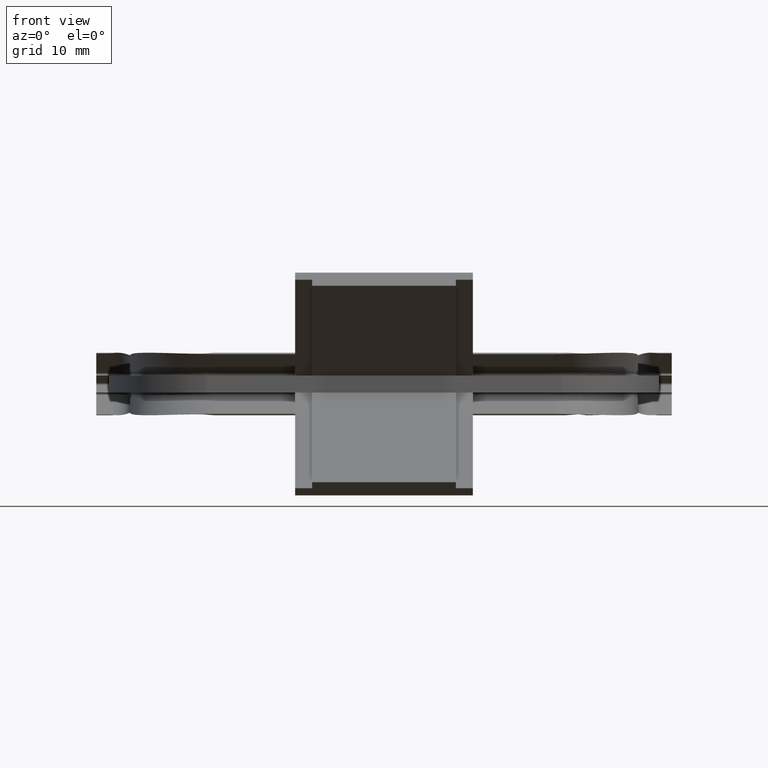
[diagram: clean part render]
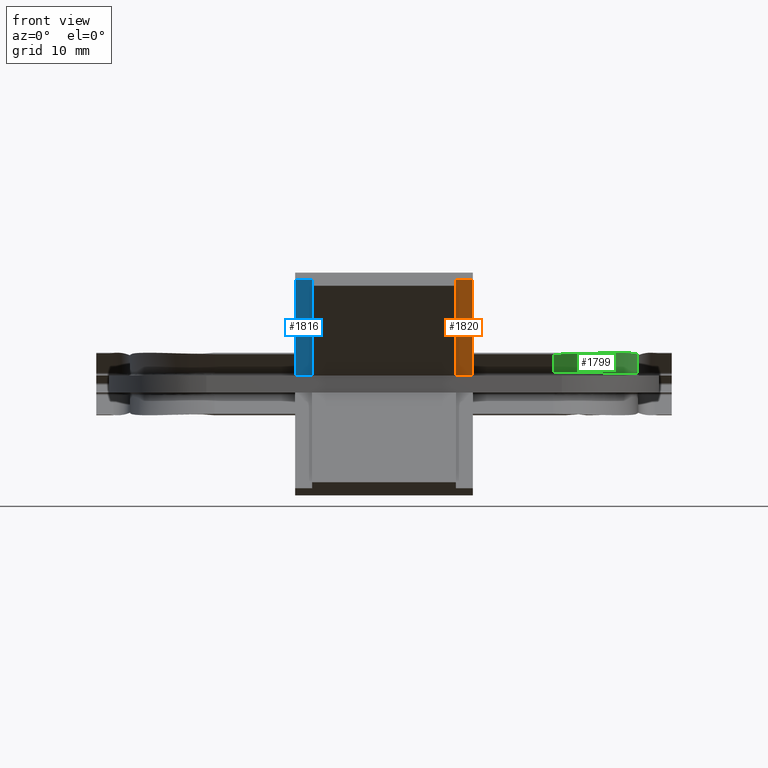
[diagram: same view with three faces highlighted in distinct colors, each labeled with its STEP entity id]
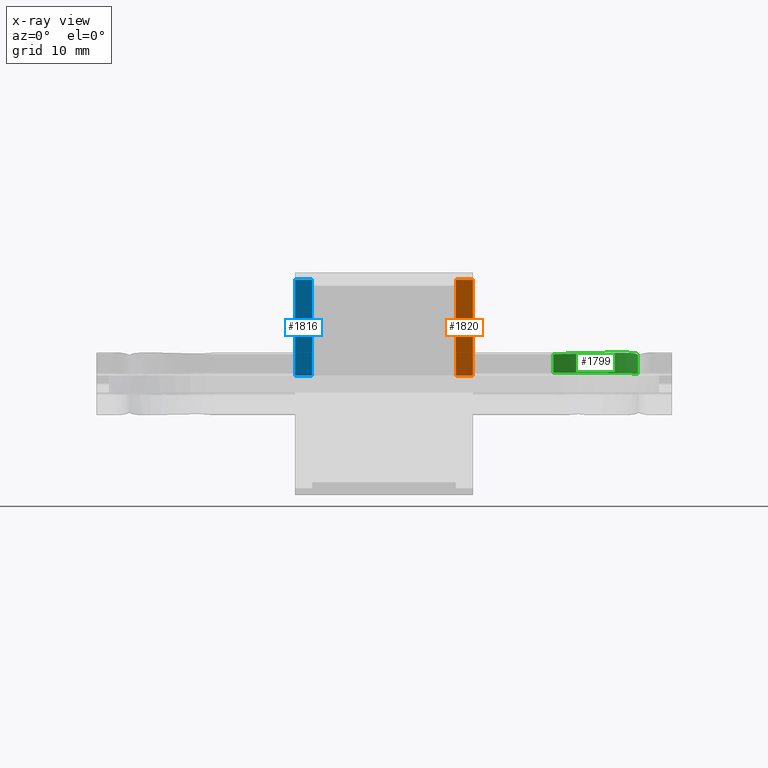
[diagram: x-ray of the same camera — body ghosted, the three highlighted faces saturated]
A machine part, front view with three faces highlighted in distinct colors.
The next image is the same camera in x-ray (body ghosted, the three faces saturated) — at least one of them is partly hidden behind the body in this view.
Their STEP definitions:

[orange] entity #1820 — the highlighted planar face has unit normal (-0, -0.7071, -0.7071).
#125=PLANE('',#2005);
#227=FACE_OUTER_BOUND('',#331,.T.);
#331=EDGE_LOOP('',(#1620,#1621,#1622,#1623));
#398=LINE('',#2662,#554);
#480=LINE('',#3987,#636);
#482=LINE('',#3991,#638);
#483=LINE('',#3992,#639);
#554=VECTOR('',#2152,10.);
#636=VECTOR('',#2448,10.);
#638=VECTOR('',#2452,10.);
#639=VECTOR('',#2453,10.);
#787=VERTEX_POINT('',#2659);
#788=VERTEX_POINT('',#2661);
#876=VERTEX_POINT('',#3986);
#877=VERTEX_POINT('',#3990);
#965=EDGE_CURVE('',#787,#788,#398,.T.);
#1132=EDGE_CURVE('',#876,#788,#480,.T.);
#1134=EDGE_CURVE('',#877,#787,#482,.T.);
#1135=EDGE_CURVE('',#876,#877,#483,.T.);
#1620=ORIENTED_EDGE('',*,*,#1134,.F.);
#1621=ORIENTED_EDGE('',*,*,#1135,.F.);
#1622=ORIENTED_EDGE('',*,*,#1132,.T.);
#1623=ORIENTED_EDGE('',*,*,#965,.F.);
#1820=ADVANCED_FACE('',(#227),#125,.T.);
#2005=AXIS2_PLACEMENT_3D('',#3989,#2450,#2451);
#2152=DIRECTION('',(-1.,6.12303176911189E-17,0.));
#2448=DIRECTION('',(-5.0756085797697E-17,0.707106781186548,-0.707106781186548));
#2450=DIRECTION('center_axis',(-4.32963728535968E-17,-0.707106781186548,
-0.707106781186548));
#2451=DIRECTION('ref_axis',(-1.,0.,6.12303176911189E-17));
#2452=DIRECTION('',(-5.0756085797697E-17,0.707106781186548,-0.707106781186548));
#2453=DIRECTION('',(1.,0.,-6.12303176911189E-17));
#2659=CARTESIAN_POINT('',(44.5,1.41421356237337,0.999999999999945));
#2661=CARTESIAN_POINT('',(42.5,1.41421356237337,0.999999999999945));
#2662=CARTESIAN_POINT('',(38.25,1.41421356237332,1.));
#3986=CARTESIAN_POINT('',(42.5,-9.89949493661151,12.3137084989848));
#3987=CARTESIAN_POINT('',(42.5,-9.89949493661151,12.3137084989848));
#3989=CARTESIAN_POINT('Origin',(42.5,-9.89949493661151,12.3137084989848));
#3990=CARTESIAN_POINT('',(44.5,-9.89949493661151,12.3137084989848));
#3991=CARTESIAN_POINT('',(44.5,-9.89949493661151,12.3137084989848));
#3992=CARTESIAN_POINT('',(42.5,-9.89949493661151,12.3137084989848));

[blue] entity #1816 — the highlighted planar face has unit normal (-0, -0.7071, -0.7071).
#121=PLANE('',#2001);
#223=FACE_OUTER_BOUND('',#327,.T.);
#327=EDGE_LOOP('',(#1604,#1605,#1606,#1607));
#394=LINE('',#2654,#550);
#471=LINE('',#3970,#627);
#473=LINE('',#3974,#629);
#474=LINE('',#3975,#630);
#550=VECTOR('',#2148,10.);
#627=VECTOR('',#2431,10.);
#629=VECTOR('',#2435,10.);
#630=VECTOR('',#2436,10.);
#783=VERTEX_POINT('',#2651);
#784=VERTEX_POINT('',#2653);
#872=VERTEX_POINT('',#3969);
#873=VERTEX_POINT('',#3973);
#961=EDGE_CURVE('',#783,#784,#394,.T.);
#1123=EDGE_CURVE('',#872,#784,#471,.T.);
#1125=EDGE_CURVE('',#873,#783,#473,.T.);
#1126=EDGE_CURVE('',#872,#873,#474,.T.);
#1604=ORIENTED_EDGE('',*,*,#1125,.F.);
#1605=ORIENTED_EDGE('',*,*,#1126,.F.);
#1606=ORIENTED_EDGE('',*,*,#1123,.T.);
#1607=ORIENTED_EDGE('',*,*,#961,.F.);
#1816=ADVANCED_FACE('',(#223),#121,.T.);
#2001=AXIS2_PLACEMENT_3D('',#3972,#2433,#2434);
#2148=DIRECTION('',(-1.,6.12303176911189E-17,0.));
#2431=DIRECTION('',(-5.0756085797697E-17,0.707106781186548,-0.707106781186548));
#2433=DIRECTION('center_axis',(-4.32963728535968E-17,-0.707106781186548,
-0.707106781186548));
#2434=DIRECTION('ref_axis',(-1.,0.,6.12303176911189E-17));
#2435=DIRECTION('',(-5.0756085797697E-17,0.707106781186548,-0.707106781186548));
#2436=DIRECTION('',(1.,0.,-6.12303176911189E-17));
#2651=CARTESIAN_POINT('',(25.5,1.41421356237337,0.999999999999945));
#2653=CARTESIAN_POINT('',(23.5,1.41421356237337,0.999999999999945));
#2654=CARTESIAN_POINT('',(28.75,1.41421356237332,1.));
#3969=CARTESIAN_POINT('',(23.5,-9.89949493661151,12.3137084989848));
#3970=CARTESIAN_POINT('',(23.5,-9.89949493661151,12.3137084989848));
#3972=CARTESIAN_POINT('Origin',(23.5,-9.89949493661151,12.3137084989848));
#3973=CARTESIAN_POINT('',(25.5,-9.89949493661151,12.3137084989848));
#3974=CARTESIAN_POINT('',(25.5,-9.89949493661151,12.3137084989848));
#3975=CARTESIAN_POINT('',(23.5,-9.89949493661151,12.3137084989848));

[green] entity #1799 — the highlighted cylindrical surface (partial cylindrical patch) has radius 10 mm, axis along (0, -0.7071, 0.7071).
#48=B_SPLINE_CURVE_WITH_KNOTS('',3,(#3684,#3685,#3686,#3687,#3688,#3689,
#3690,#3691,#3692,#3693),.UNSPECIFIED.,.F.,.F.,(4,2,2,2,4),(-2.20345509147458,
-1.83863532756005,-1.48197378230446,-0.838537074363588,-0.245859271841657),
 .UNSPECIFIED.);
#49=B_SPLINE_CURVE_WITH_KNOTS('',3,(#3695,#3696,#3697,#3698,#3699,#3700,
#3701,#3702,#3703,#3704,#3705,#3706,#3707,#3708,#3709,#3710,#3711,#3712,
#3713,#3714,#3715,#3716),.UNSPECIFIED.,.F.,.F.,(4,3,3,3,3,3,3,4),(-0.183531874820078,
-0.181499913917173,-0.17923327375853,-0.17449172194847,-0.160807518547751,
-0.0924444136685303,-0.0535271469788639,0.),.UNSPECIFIED.);
#87=ELLIPSE('',#1914,14.2842570685353,10.);
#206=FACE_OUTER_BOUND('',#310,.T.);
#310=EDGE_LOOP('',(#1526,#1527,#1528,#1529,#1530));
#455=LINE('',#3682,#611);
#456=LINE('',#3717,#612);
#611=VECTOR('',#2387,10.);
#612=VECTOR('',#2388,10.);
#804=VERTEX_POINT('',#2786);
#805=VERTEX_POINT('',#2831);
#860=VERTEX_POINT('',#3681);
#861=VERTEX_POINT('',#3683);
#862=VERTEX_POINT('',#3694);
#990=EDGE_CURVE('',#805,#804,#87,.T.);
#1096=EDGE_CURVE('',#860,#805,#455,.T.);
#1097=EDGE_CURVE('',#861,#860,#48,.T.);
#1098=EDGE_CURVE('',#862,#861,#49,.T.);
#1099=EDGE_CURVE('',#804,#862,#456,.T.);
#1526=ORIENTED_EDGE('',*,*,#990,.F.);
#1527=ORIENTED_EDGE('',*,*,#1096,.F.);
#1528=ORIENTED_EDGE('',*,*,#1097,.F.);
#1529=ORIENTED_EDGE('',*,*,#1098,.F.);
#1530=ORIENTED_EDGE('',*,*,#1099,.F.);
#1727=CYLINDRICAL_SURFACE('',#1986,10.);
#1799=ADVANCED_FACE('',(#206),#1727,.T.);
#1914=AXIS2_PLACEMENT_3D('',#2833,#2196,#2197);
#1986=AXIS2_PLACEMENT_3D('',#3680,#2385,#2386);
#2196=DIRECTION('center_axis',(1.11016861126346E-16,-0.00990050483961299,
-0.999950988800912));
#2197=DIRECTION('ref_axis',(0.,-0.999950988800911,0.00990050483961299));
#2385=DIRECTION('center_axis',(0.,-0.707106781186547,0.707106781186548));
#2386=DIRECTION('ref_axis',(1.,1.57009245868378E-16,1.57009245868377E-16));
#2387=DIRECTION('',(0.,0.707106781186547,-0.707106781186548));
#2388=DIRECTION('',(2.5379309814836E-15,-0.707106781186547,0.707106781186548));
#2786=CARTESIAN_POINT('',(54.,5.31543289325509,1.34142135623731));
#2831=CARTESIAN_POINT('',(64.,19.5989898732234,1.2));
#2833=CARTESIAN_POINT('Origin',(54.,19.5989898732234,1.2));
#3680=CARTESIAN_POINT('Origin',(54.,9.89949493661171,10.8994949366117));
#3681=CARTESIAN_POINT('',(64.,17.354297804505,3.44469206871838));
#3682=CARTESIAN_POINT('',(64.,9.89949493661171,10.8994949366117));
#3683=CARTESIAN_POINT('',(55.822116561885,3.33130042762636,3.56230262763133));
#3684=CARTESIAN_POINT('Ctrl Pts',(55.8221165611165,3.33130043074782,3.56230262745275));
#3685=CARTESIAN_POINT('Ctrl Pts',(56.8013664757037,3.57323219042032,3.57700630131074));
#3686=CARTESIAN_POINT('Ctrl Pts',(57.7166057580286,4.00183379716339,3.6019456250735));
#3687=CARTESIAN_POINT('Ctrl Pts',(59.3594266246862,5.13983239742794,3.65015910262434));
#3688=CARTESIAN_POINT('Ctrl Pts',(60.0737845791503,5.83055043952667,3.67240558031309));
#3689=CARTESIAN_POINT('Ctrl Pts',(61.8060010879556,7.99918089738576,3.70965557539283));
#3690=CARTESIAN_POINT('Ctrl Pts',(62.6578755556601,9.72595935080244,3.70371660033779));
#3691=CARTESIAN_POINT('Ctrl Pts',(63.7386289863734,13.4567023109592,3.61369490081654));
#3692=CARTESIAN_POINT('Ctrl Pts',(64.,15.3931109063672,3.53867528593424));
#3693=CARTESIAN_POINT('Ctrl Pts',(64.,17.354297804505,3.44469206871838));
#3694=CARTESIAN_POINT('',(54.,3.15685424949245,3.49999999999995));
#3695=CARTESIAN_POINT('Ctrl Pts',(54.,3.15685424949245,3.49999999999995));
#3696=CARTESIAN_POINT('Ctrl Pts',(54.0067731945677,3.15685424949245,3.49999999999995));
#3697=CARTESIAN_POINT('Ctrl Pts',(54.0135463765208,3.15686147446624,3.50000254198215));
#3698=CARTESIAN_POINT('Ctrl Pts',(54.020319537659,3.15687592203229,3.50000762595353));
#3699=CARTESIAN_POINT('Ctrl Pts',(54.0278749581471,3.15689203820527,3.50001329709301));
#3700=CARTESIAN_POINT('Ctrl Pts',(54.0354303414765,3.15691714161844,3.50002213128855));
#3701=CARTESIAN_POINT('Ctrl Pts',(54.0429856762776,3.15695122894844,3.50003412857065));
#3702=CARTESIAN_POINT('Ctrl Pts',(54.058790572024,3.15702253574174,3.5000592255118));
#3703=CARTESIAN_POINT('Ctrl Pts',(54.0745951750168,3.1571331555779,3.50009816388156));
#3704=CARTESIAN_POINT('Ctrl Pts',(54.0903993811702,3.15728305777047,3.50015094426837));
#3705=CARTESIAN_POINT('Ctrl Pts',(54.1360106030345,3.15771567818157,3.50030326940952));
#3706=CARTESIAN_POINT('Ctrl Pts',(54.1816167601948,3.15847546212163,3.50057087516917));
#3707=CARTESIAN_POINT('Ctrl Pts',(54.2272153491319,3.15956165529455,3.5009537952602));
#3708=CARTESIAN_POINT('Ctrl Pts',(54.4550153186711,3.16498802434399,3.50286677518139));
#3709=CARTESIAN_POINT('Ctrl Pts',(54.6823442183937,3.17854988743667,3.50764660696452));
#3710=CARTESIAN_POINT('Ctrl Pts',(54.9088845126796,3.20012441936951,3.51531403978947));
#3711=CARTESIAN_POINT('Ctrl Pts',(55.0378477753087,3.2124062169037,3.51967890192674));
#3712=CARTESIAN_POINT('Ctrl Pts',(55.166555550947,3.22728565920132,3.52497955383292));
#3713=CARTESIAN_POINT('Ctrl Pts',(55.2949492153069,3.24474761182987,3.53121982342569));
#3714=CARTESIAN_POINT('Ctrl Pts',(55.4715429776118,3.26876493330159,3.53980274448084));
#3715=CARTESIAN_POINT('Ctrl Pts',(55.6473186277686,3.29763670586227,3.55015645186924));
#3716=CARTESIAN_POINT('Ctrl Pts',(55.8221164717836,3.33130040867739,3.56230262611139));
#3717=CARTESIAN_POINT('',(54.,5.6568542494924,1.));